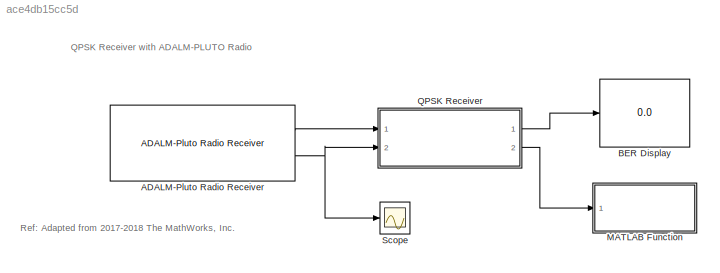
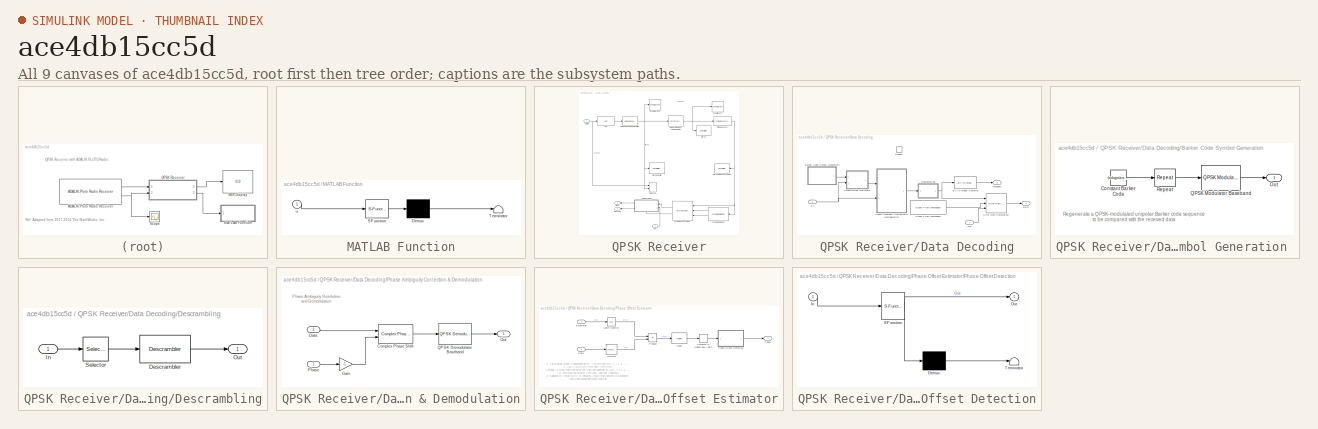
[diagram: thumbnail index - all 9 canvases of the model, root first then tree order]
MODEL slx_ace4db15cc5d
KIND model
CONFIG AbsTol = auto
CONFIG EnableMultiTasking = off
CONFIG FixedStep = auto
CONFIG InitFcn = sdrqpskrx = plutoradioqpskreceiver_init;
CONFIG MaxStep = auto
CONFIG MinStep = auto
CONFIG PostLoadFcn = sdrqpskrx = plutoradioqpskreceiver_init;
CONFIG RelTol = 1e-3
CONFIG SampleTimeConstraint = Unconstrained
CONFIG Solver = FixedStepDiscrete
CONFIG SolverName = FixedStepDiscrete
CONFIG StartTime = 0.0
CONFIG StopTime = inf
BLOCK [Reference] ADALM-Pluto Radio Receiver  REF=plutoradiolib/ADALM-Pluto Radio
Receiver
  Ports = [0, 2]
  SourceBlock = plutoradiolib/ADALM-Pluto Radio\nReceiver
  SourceProductBaseCode = PLUTO
  SourceType = comm.SDRRxPluto
BLOCK [Display] BER Display
  Decimation = 1
  Format = short_e
  Ports = [1]
BLOCK [SubSystem] MATLAB Function
  ErrorFcn = Stateflow.Translate.translate
  PermitHierarchicalResolution = ExplicitOnly
  Ports = [1]
  RequestExecContextInheritance = off
  SFBlockType = MATLAB Function
  TreatAsAtomicUnit = on
BLOCK [Demux] MATLAB Function/ Demux 
  Outputs = 1
  Ports = [1, 1]
BLOCK [S-Function] MATLAB Function/ SFunction 
  EnableBusSupport = on
  FunctionName = sf_sfun
  PortCounts = [1 1]
  Ports = [1, 1]
  SFcnIsStateOwnerBlock = off
  SFunctionDeploymentMode = off
  Tag = Stateflow S-Function 1
BLOCK [Terminator] MATLAB Function/ Terminator 
BLOCK [Inport] MATLAB Function/u
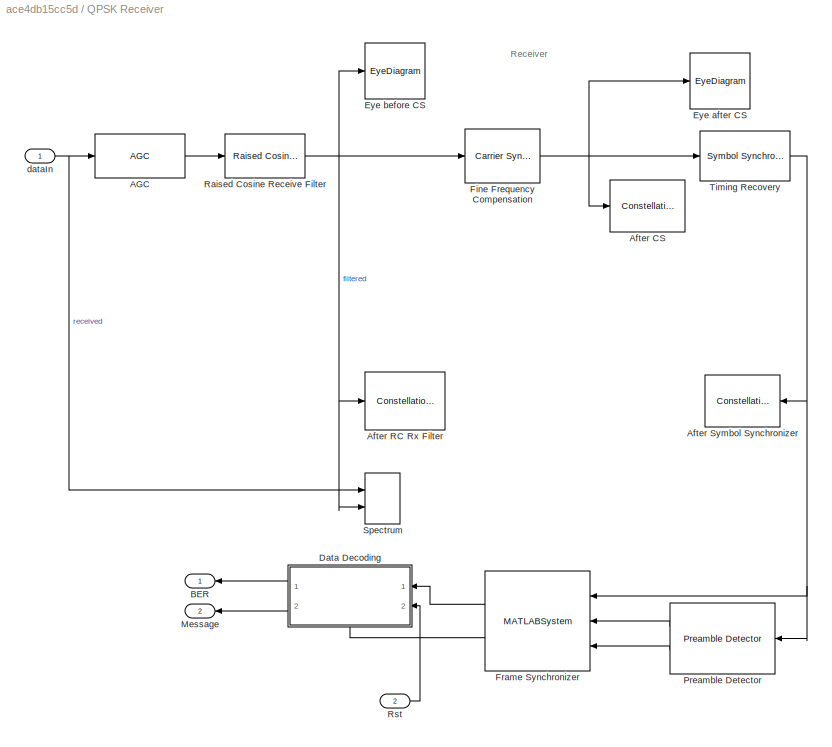
BLOCK [SubSystem] QPSK Receiver
  Ports = [2, 2]
  RequestExecContextInheritance = off
BLOCK [Reference] QPSK Receiver/AGC  REF=commrfcorlib/AGC
  Ports = [1, 1]
  SourceBlock = commrfcorlib/AGC
  SourceProductBaseCode = CM
  SourceType = AGC
BLOCK [ConstellationDiagram] QPSK Receiver/After CS
  Commented = on
  Ports = [1]
  ScopeSpecificationString = comm.scopes.ConstellationDiagramBlockCfg('CurrentConfiguration', extmgr.ConfigurationSet(extmgr.Configuration('Core','General UI',true),extmgr.Configuration('Core','Source UI',true),extmgr.Configuration('Sources','WiredSimulink',true),extmgr.Configuration('Sources','Streaming',false),extmgr.Configuration('Sources','Workspace',false),extmgr.Configuration('Sources','SPTool',false),extmgr.Configurati...<+2460ch>
  Tag = ScatterPlot
BLOCK [ConstellationDiagram] QPSK Receiver/After RC Rx Filter
  Commented = on
  Ports = [1]
  ScopeSpecificationString = comm.scopes.ConstellationDiagramBlockCfg('CurrentConfiguration', extmgr.ConfigurationSet(extmgr.Configuration('Core','General UI',true),extmgr.Configuration('Core','Source UI',true),extmgr.Configuration('Sources','WiredSimulink',true),extmgr.Configuration('Sources','Workspace',false),extmgr.Configuration('Sources','SPTool',false),extmgr.Configuration('Sources','Simulink',false),extmgr.Configuratio...<+2487ch>
  Tag = ScatterPlot
BLOCK [ConstellationDiagram] QPSK Receiver/After Symbol Synchronizer
  Ports = [1]
  ScopeSpecificationString = comm.scopes.ConstellationDiagramBlockCfg('CurrentConfiguration', extmgr.ConfigurationSet(extmgr.Configuration('Core','General UI',true),extmgr.Configuration('Core','Source UI',true),extmgr.Configuration('Sources','WiredSimulink',true),extmgr.Configuration('Sources','SPTool',false),extmgr.Configuration('Sources','SimulinkEvent',false),extmgr.Configuration('Sources','Simulink',false),extmgr.Configur...<+2601ch>
  Tag = ScatterPlot
BLOCK [Outport] QPSK Receiver/BER
  VectorParamsAs1DForOutWhenUnconnected = off
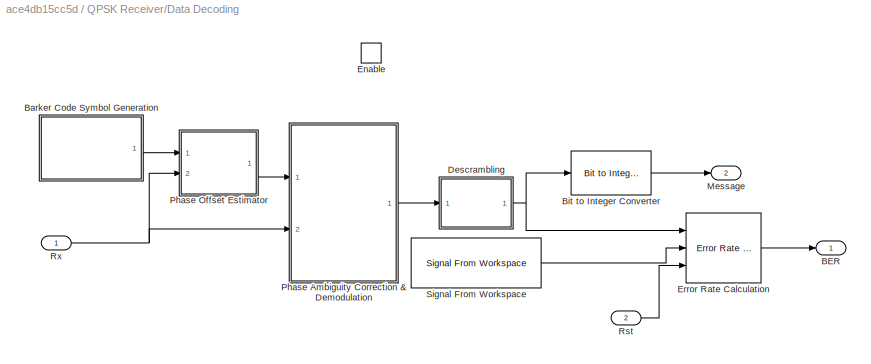
BLOCK [SubSystem] QPSK Receiver/Data Decoding
  Ports = [2, 2, 1]
  RequestExecContextInheritance = off
BLOCK [Outport] QPSK Receiver/Data Decoding/BER
  VectorParamsAs1DForOutWhenUnconnected = off
BLOCK [SubSystem] QPSK Receiver/Data Decoding/Barker Code Symbol Generation 
  Ports = [0, 1]
  RequestExecContextInheritance = off
BLOCK [Constant] QPSK Receiver/Data Decoding/Barker Code Symbol Generation /Constant Barker Code
  OutDataTypeStr = double
  Value = (sdrqpskrx.BarkerCode)' > 0
  VectorParams1D = off
BLOCK [Outport] QPSK Receiver/Data Decoding/Barker Code Symbol Generation /Out
  VectorParamsAs1DForOutWhenUnconnected = off
BLOCK [Reference] QPSK Receiver/Data Decoding/Barker Code Symbol Generation /QPSK Modulator Baseband  REF=commdigbbndpm3/QPSK
Modulator
Baseband
  Ports = [1, 1]
  SourceBlock = commdigbbndpm3/QPSK\nModulator\nBaseband
  SourceProductBaseCode = CM
  SourceType = QPSK Modulator Baseband
BLOCK [Reference] QPSK Receiver/Data Decoding/Barker Code Symbol Generation /Repeat  REF=dspsigops/Repeat
  Ports = [1, 1]
  SourceBlock = dspsigops/Repeat
  SourceProductBaseCode = DS
  SourceType = Repeat
  UserDataPersistent = on
BLOCK [Reference] QPSK Receiver/Data Decoding/Bit to Integer Converter  REF=commutil2/Bit to Integer
Converter
  Ports = [1, 1]
  SourceBlock = commutil2/Bit to Integer\nConverter
  SourceProductBaseCode = CM
  SourceType = Bit to Integer Converter
BLOCK [SubSystem] QPSK Receiver/Data Decoding/Descrambling
  Ports = [1, 1]
  RequestExecContextInheritance = off
BLOCK [Reference] QPSK Receiver/Data Decoding/Descrambling/Descrambler  REF=commsequence2/Descrambler
  Ports = [1, 1]
  SourceBlock = commsequence2/Descrambler
  SourceProductBaseCode = CM
  SourceType = Descrambler
BLOCK [Inport] QPSK Receiver/Data Decoding/Descrambling/In
BLOCK [Outport] QPSK Receiver/Data Decoding/Descrambling/Out
  VectorParamsAs1DForOutWhenUnconnected = off
BLOCK [Selector] QPSK Receiver/Data Decoding/Descrambling/Selector
  IndexOptions = Index vector (dialog)
  Indices = [sdrqpskrx.HeaderLength+(1 : sdrqpskrx.PayloadLength)]
  OutputSizes = 1
  Ports = [1, 1]
BLOCK [EnablePort] QPSK Receiver/Data Decoding/Enable
  Ports = []
BLOCK [Reference] QPSK Receiver/Data Decoding/Error Rate Calculation  REF=commsink2/Error Rate
Calculation
  Ports = [3, 1]
  SourceBlock = commsink2/Error Rate\nCalculation
  SourceProductBaseCode = CM
  SourceType = Error Rate Calculation
BLOCK [Outport] QPSK Receiver/Data Decoding/Message
  Port = 2
  VectorParamsAs1DForOutWhenUnconnected = off
BLOCK [SubSystem] QPSK Receiver/Data Decoding/Phase Ambiguity Correction & Demodulation
  Ports = [2, 1]
  RequestExecContextInheritance = off
BLOCK [Reference] QPSK Receiver/Data Decoding/Phase Ambiguity Correction & Demodulation/Complex Phase Shift  REF=commutil2/Complex Phase
Shift
  Ports = [2, 1]
  SourceBlock = commutil2/Complex Phase\nShift
  SourceProductBaseCode = CM
  SourceType = Complex Phase Shift
BLOCK [Inport] QPSK Receiver/Data Decoding/Phase Ambiguity Correction & Demodulation/Data
  Port = 2
BLOCK [Gain] QPSK Receiver/Data Decoding/Phase Ambiguity Correction & Demodulation/Gain
  Gain = -1
  OutDataTypeStr = Inherit: Same as input
BLOCK [Outport] QPSK Receiver/Data Decoding/Phase Ambiguity Correction & Demodulation/Out
  VectorParamsAs1DForOutWhenUnconnected = off
BLOCK [Inport] QPSK Receiver/Data Decoding/Phase Ambiguity Correction & Demodulation/Phase
BLOCK [Reference] QPSK Receiver/Data Decoding/Phase Ambiguity Correction & Demodulation/QPSK Demodulator Baseband  REF=commdigbbndpm3/QPSK
Demodulator
Baseband
  Ports = [1, 1]
  SourceBlock = commdigbbndpm3/QPSK\nDemodulator\nBaseband
  SourceProductBaseCode = CM
  SourceType = QPSK Demodulator Baseband
BLOCK [SubSystem] QPSK Receiver/Data Decoding/Phase Offset Estimator
  Ports = [2, 1]
  RequestExecContextInheritance = off
BLOCK [Inport] QPSK Receiver/Data Decoding/Phase Offset Estimator/BarkerRef
BLOCK [ComplexToMagnitudeAngle] QPSK Receiver/Data Decoding/Phase Offset Estimator/Complex to Magnitude-Angle
  Output = Angle
  Ports = [1, 1]
BLOCK [Inport] QPSK Receiver/Data Decoding/Phase Offset Estimator/Data
  Port = 2
BLOCK [Math] QPSK Receiver/Data Decoding/Phase Offset Estimator/Math Function
  Operator = conj
  Ports = [1, 1]
  SignedPower = on
BLOCK [Reference] QPSK Receiver/Data Decoding/Phase Offset Estimator/Mean  REF=dspstat3/Mean
  Ports = [1, 1]
  SourceBlock = dspstat3/Mean
  SourceProductBaseCode = DS
  SourceType = Mean
  UserDataPersistent = on
BLOCK [Outport] QPSK Receiver/Data Decoding/Phase Offset Estimator/Phase
  VectorParamsAs1DForOutWhenUnconnected = off
BLOCK [SubSystem] QPSK Receiver/Data Decoding/Phase Offset Estimator/Phase Offset Detection
  ErrorFcn = Stateflow.Translate.translate
  PermitHierarchicalResolution = ExplicitOnly
  Ports = [1, 1]
  RequestExecContextInheritance = off
  SFBlockType = MATLAB Function
  TreatAsAtomicUnit = on
BLOCK [Demux] QPSK Receiver/Data Decoding/Phase Offset Estimator/Phase Offset Detection/ Demux 
  Outputs = 1
  Ports = [1, 1]
BLOCK [S-Function] QPSK Receiver/Data Decoding/Phase Offset Estimator/Phase Offset Detection/ SFunction 
  EnableBusSupport = on
  FunctionName = sf_sfun
  PortCounts = [1 2]
  Ports = [1, 2]
  SFcnIsStateOwnerBlock = off
  SFunctionDeploymentMode = off
  Tag = Stateflow S-Function 2
BLOCK [Terminator] QPSK Receiver/Data Decoding/Phase Offset Estimator/Phase Offset Detection/ Terminator 
BLOCK [Inport] QPSK Receiver/Data Decoding/Phase Offset Estimator/Phase Offset Detection/In
BLOCK [Outport] QPSK Receiver/Data Decoding/Phase Offset Estimator/Phase Offset Detection/Out
  VectorParamsAs1DForOutWhenUnconnected = off
BLOCK [Product] QPSK Receiver/Data Decoding/Phase Offset Estimator/Product
  Ports = [2, 1]
  RndMeth = Zero
BLOCK [Selector] QPSK Receiver/Data Decoding/Phase Offset Estimator/Selector
  IndexOptions = Index vector (dialog)
  Indices = [1:sdrqpskrx.BarkerLength]
  OutputSizes = 1
  Ports = [1, 1]
BLOCK [Inport] QPSK Receiver/Data Decoding/Rst
  Port = 2
BLOCK [Inport] QPSK Receiver/Data Decoding/Rx
BLOCK [Reference] QPSK Receiver/Data Decoding/Signal From Workspace  REF=dspsrcs4/Signal From
Workspace
  Ports = [0, 1]
  SourceBlock = dspsrcs4/Signal From\nWorkspace
  SourceProductBaseCode = DS
  SourceType = Signal From Workspace
BLOCK [EyeDiagram] QPSK Receiver/Eye after CS
  Commented = on
  Ports = [1]
  ScopeSpecificationString = comm.scopes.EyeDiagramBlockCfg('CurrentConfiguration', extmgr.ConfigurationSet(extmgr.Configuration('Core','General UI',true),extmgr.Configuration('Core','Source UI',true),extmgr.Configuration('Sources','WiredSimulink',true),extmgr.Configuration('Sources','Workspace',false),extmgr.Configuration('Sources','Streaming',false),extmgr.Configuration('Sources','SPTool',false),extmgr.Configuration('Source...<+1500ch>
BLOCK [EyeDiagram] QPSK Receiver/Eye before CS
  Commented = on
  Ports = [1]
  ScopeSpecificationString = comm.scopes.EyeDiagramBlockCfg('CurrentConfiguration', extmgr.ConfigurationSet(extmgr.Configuration('Core','General UI',true),extmgr.Configuration('Core','Source UI',true),extmgr.Configuration('Sources','WiredSimulink',true),extmgr.Configuration('Sources','Workspace',false),extmgr.Configuration('Sources','Streaming',false),extmgr.Configuration('Sources','SPTool',false),extmgr.Configuration('Source...<+1501ch>
BLOCK [Reference] QPSK Receiver/Fine Frequency Compensation  REF=commsync2/Carrier Synchronizer
  Ports = [1, 1]
  SourceBlock = commsync2/Carrier Synchronizer
  SourceProductBaseCode = CM
  SourceType = Carrier Synchronizer
BLOCK [MATLABSystem] QPSK Receiver/Frame Synchronizer
  Input = Symbol
  MaskDisplay = disp(['Frame' char(10) 'Synchronizer']);\nport_label('input',1,'u');\nport_label('input',2,'idx');\nport_label('input',3,'dtMt');\nport_label('output',1,'Frame');\nport_label('output',2,'Valid');
  MaskType = comm.internal.examples.FrameSynchronizer
  OutputFrameLength = sdrqpskrx.FrameSize
  Ports = [3, 2]
  PreambleLength = sdrqpskrx.BarkerLength
  SimulateUsing = Code generation
  System = comm.internal.examples.FrameSynchronizer
BLOCK [Outport] QPSK Receiver/Message
  Port = 2
  VectorParamsAs1DForOutWhenUnconnected = off
BLOCK [Reference] QPSK Receiver/Preamble Detector  REF=commsync2/Preamble Detector
  Ports = [1, 2]
  SourceBlock = commsync2/Preamble Detector
  SourceProductBaseCode = CM
  SourceType = Preamble Detector
BLOCK [Reference] QPSK Receiver/Raised Cosine Receive Filter  REF=commfilt2/Raised Cosine
Receive Filter
  Ports = [1, 1]
  SourceBlock = commfilt2/Raised Cosine\nReceive Filter
  SourceProductBaseCode = CM
  SourceType = Raised Cosine Receive Filter
  UserDataPersistent = on
BLOCK [Inport] QPSK Receiver/Rst
  Port = 2
BLOCK [SpectrumAnalyzer] QPSK Receiver/Spectrum
  Commented = on
  NumInputPorts = 2
  Ports = [2]
  ScopeSpecificationString = spbscopes.SpectrumAnalyzerBlockCfg('CurrentConfiguration', extmgr.ConfigurationSet(extmgr.Configuration('Core','General UI',true,'DisplayFullSourceName',true,'ShowPlaybackToolbar',false,'FigureColor',[0.701960784313725 0.701960784313725 0.701960784313725]),extmgr.Configuration('Core','Source UI',true),extmgr.Configuration('Sources','WiredSimulink',true),extmgr.Configuration('Sources','Simulink',fa...<+3384ch>
BLOCK [Reference] QPSK Receiver/Timing Recovery  REF=commsync2/Symbol Synchronizer
  Ports = [1, 1]
  SourceBlock = commsync2/Symbol Synchronizer
  SourceProductBaseCode = CM
  SourceType = Symbol Synchronizer
BLOCK [Inport] QPSK Receiver/dataIn
BLOCK [Scope] Scope
  Floating = off
  NumInputPorts = 1
  Ports = [1]
  ScopeSpecificationString = Simulink.scopes.TimeScopeBlockCfg('CurrentConfiguration', extmgr.ConfigurationSet(extmgr.Configuration('Core','General UI',true),extmgr.Configuration('Core','Source UI',true),extmgr.Configuration('Sources','WiredSimulink',true,'DataLoggingVariableName','ScopeData1'),extmgr.Configuration('Visuals','Time Domain',true,'SerializedDisplays',{struct('MinYLimReal','-1.00000','MaxYLimReal','1.00000','YLab...<+1413ch>
ANNOTATION (root): QPSK Receiver with ADALM-PLUTO Radio
ANNOTATION (root): Ref: Adapted from 2017-2018 The MathWorks, Inc.
ANNOTATION QPSK Receiver: Receiver
ANNOTATION QPSK Receiver/Data Decoding/Barker Code Symbol Generation : Regenerate a QPSK-modulated unipolar Barker code sequence to be compared with the received data
ANNOTATION QPSK Receiver/Data Decoding/Phase Ambiguity Correction & Demodulation: Phase Ambiguity Resolution and Demodulation
ANNOTATION QPSK Receiver/Data Decoding/Phase Offset Estimator: 1. The original signal is expressed as y(t) = x(t)e^{j\phi}+n(t), t = 1, 2, ..., N 2. y_1(t) = x{*}(t)y(t) = e^{j\phi} + x{*}(t)n(t) The goal is to estimate the value \phi from the observation y_1(t), t = 1, 2, ...N i.e., estimate the value B = e^{j\phi}, and \phi = angle(B) 3. Suppose n(t) yields to a i.i.d. complex AWGN distribution N(0,\sigma^2). Then a non-biased estimator could be B_{est} = 1...<+91ch>
LINE ADALM-Pluto Radio Receiver:1 -> QPSK Receiver:1
NET ADALM-Pluto Radio Receiver:2 -> QPSK Receiver:2, Scope:1
LINE QPSK Receiver/AGC:1 -> QPSK Receiver/Raised Cosine Receive Filter:1
LINE QPSK Receiver/Data Decoding/Barker Code Symbol Generation /Constant Barker Code:1 -> QPSK Receiver/Data Decoding/Barker Code Symbol Generation /Repeat:1
LINE QPSK Receiver/Data Decoding/Barker Code Symbol Generation /QPSK Modulator Baseband:1 -> QPSK Receiver/Data Decoding/Barker Code Symbol Generation /Out:1
LINE QPSK Receiver/Data Decoding/Barker Code Symbol Generation /Repeat:1 -> QPSK Receiver/Data Decoding/Barker Code Symbol Generation /QPSK Modulator Baseband:1
LINE QPSK Receiver/Data Decoding/Barker Code Symbol Generation :1 -> QPSK Receiver/Data Decoding/Phase Offset Estimator:1
LINE QPSK Receiver/Data Decoding/Bit to Integer Converter:1 -> QPSK Receiver/Data Decoding/Message:1
LINE QPSK Receiver/Data Decoding/Descrambling/Descrambler:1 -> QPSK Receiver/Data Decoding/Descrambling/Out:1
LINE QPSK Receiver/Data Decoding/Descrambling/In:1 -> QPSK Receiver/Data Decoding/Descrambling/Selector:1
LINE QPSK Receiver/Data Decoding/Descrambling/Selector:1 -> QPSK Receiver/Data Decoding/Descrambling/Descrambler:1
NET QPSK Receiver/Data Decoding/Descrambling:1 -> QPSK Receiver/Data Decoding/Bit to Integer Converter:1, QPSK Receiver/Data Decoding/Error Rate Calculation:1
LINE QPSK Receiver/Data Decoding/Error Rate Calculation:1 -> QPSK Receiver/Data Decoding/BER:1
LINE QPSK Receiver/Data Decoding/Phase Ambiguity Correction & Demodulation/Complex Phase Shift:1 -> QPSK Receiver/Data Decoding/Phase Ambiguity Correction & Demodulation/QPSK Demodulator Baseband:1
LINE QPSK Receiver/Data Decoding/Phase Ambiguity Correction & Demodulation/Data:1 -> QPSK Receiver/Data Decoding/Phase Ambiguity Correction & Demodulation/Complex Phase Shift:1
LINE QPSK Receiver/Data Decoding/Phase Ambiguity Correction & Demodulation/Gain:1 -> QPSK Receiver/Data Decoding/Phase Ambiguity Correction & Demodulation/Complex Phase Shift:2
LINE QPSK Receiver/Data Decoding/Phase Ambiguity Correction & Demodulation/Phase:1 -> QPSK Receiver/Data Decoding/Phase Ambiguity Correction & Demodulation/Gain:1
LINE QPSK Receiver/Data Decoding/Phase Ambiguity Correction & Demodulation/QPSK Demodulator Baseband:1 -> QPSK Receiver/Data Decoding/Phase Ambiguity Correction & Demodulation/Out:1
LINE QPSK Receiver/Data Decoding/Phase Ambiguity Correction & Demodulation:1 -> QPSK Receiver/Data Decoding/Descrambling:1
LINE QPSK Receiver/Data Decoding/Phase Offset Estimator/BarkerRef:1 -> QPSK Receiver/Data Decoding/Phase Offset Estimator/Math Function:1
LINE QPSK Receiver/Data Decoding/Phase Offset Estimator/Complex to Magnitude-Angle:1 -> QPSK Receiver/Data Decoding/Phase Offset Estimator/Phase Offset Detection:1
LINE QPSK Receiver/Data Decoding/Phase Offset Estimator/Data:1 -> QPSK Receiver/Data Decoding/Phase Offset Estimator/Selector:1
LINE QPSK Receiver/Data Decoding/Phase Offset Estimator/Math Function:1 -> QPSK Receiver/Data Decoding/Phase Offset Estimator/Product:1
LINE QPSK Receiver/Data Decoding/Phase Offset Estimator/Mean:1 -> QPSK Receiver/Data Decoding/Phase Offset Estimator/Complex to Magnitude-Angle:1
LINE QPSK Receiver/Data Decoding/Phase Offset Estimator/Phase Offset Detection:1 -> QPSK Receiver/Data Decoding/Phase Offset Estimator/Phase:1
LINE QPSK Receiver/Data Decoding/Phase Offset Estimator/Product:1 -> QPSK Receiver/Data Decoding/Phase Offset Estimator/Mean:1
LINE QPSK Receiver/Data Decoding/Phase Offset Estimator/Selector:1 -> QPSK Receiver/Data Decoding/Phase Offset Estimator/Product:2
LINE QPSK Receiver/Data Decoding/Phase Offset Estimator:1 -> QPSK Receiver/Data Decoding/Phase Ambiguity Correction & Demodulation:1
LINE QPSK Receiver/Data Decoding/Rst:1 -> QPSK Receiver/Data Decoding/Error Rate Calculation:3
NET QPSK Receiver/Data Decoding/Rx:1 -> QPSK Receiver/Data Decoding/Phase Ambiguity Correction & Demodulation:2, QPSK Receiver/Data Decoding/Phase Offset Estimator:2
LINE QPSK Receiver/Data Decoding/Signal From Workspace:1 -> QPSK Receiver/Data Decoding/Error Rate Calculation:2
LINE QPSK Receiver/Data Decoding:1 -> QPSK Receiver/BER:1
LINE QPSK Receiver/Data Decoding:2 -> QPSK Receiver/Message:1
NET QPSK Receiver/Fine Frequency Compensation:1 -> QPSK Receiver/After CS:1, QPSK Receiver/Eye after CS:1, QPSK Receiver/Timing Recovery:1
LINE QPSK Receiver/Frame Synchronizer:1 -> QPSK Receiver/Data Decoding:1
LINE QPSK Receiver/Frame Synchronizer:2 -> QPSK Receiver/Data Decoding:enable
LINE QPSK Receiver/Preamble Detector:1 -> QPSK Receiver/Frame Synchronizer:2
LINE QPSK Receiver/Preamble Detector:2 -> QPSK Receiver/Frame Synchronizer:3
NET QPSK Receiver/Raised Cosine Receive Filter:1 -> QPSK Receiver/After RC Rx Filter:1, QPSK Receiver/Eye before CS:1, QPSK Receiver/Fine Frequency Compensation:1, QPSK Receiver/Spectrum:2
LINE QPSK Receiver/Rst:1 -> QPSK Receiver/Data Decoding:2
NET QPSK Receiver/Timing Recovery:1 -> QPSK Receiver/After Symbol Synchronizer:1, QPSK Receiver/Frame Synchronizer:1, QPSK Receiver/Preamble Detector:1
NET QPSK Receiver/dataIn:1 -> QPSK Receiver/AGC:1, QPSK Receiver/Spectrum:1
LINE QPSK Receiver:1 -> BER Display:1
LINE QPSK Receiver:2 -> MATLAB Function:1
note: NET lines group one-source signal fan-out (src -> all destinations, sorted); 1:1 wires keep LINE
CHART MATLAB Function states=1 transitions=1
  STATE_LABEL 'eML_blk_kernel()'
  STATE_LABEL "SCRIPT:\nfunction IntegerToASCII(u)\nfprintf('%s', char(u'));\nend\n\n"
CHART QPSK Receiver/Data Decoding/Phase Offset
Estimator/Phase Offset Detection states=1 transitions=1
  STATE_LABEL 'eML_blk_kernel()'
  STATE_LABEL 'SCRIPT:\nfunction Out = phasedecision(In)\n% Map the estimated phase to one of -pi, -pi/2, 0, pi/2,  \n%#codegen\nOut = round(In.*2./pi)./2.*pi;\n% The above processing is equivalent to the following processing using\n% if/else statements\n%\n% if In<pi/4 && In>-pi/4\n%     Out = 0;\n% elseif In>=pi/4 && In<pi*3/4\n%     Out = pi/2;\n% elseif In>=pi*3/4 || In<=-pi*3/4\n%     Out = -pi;\n% else\n%     Out = -pi/2...<+10ch>'
